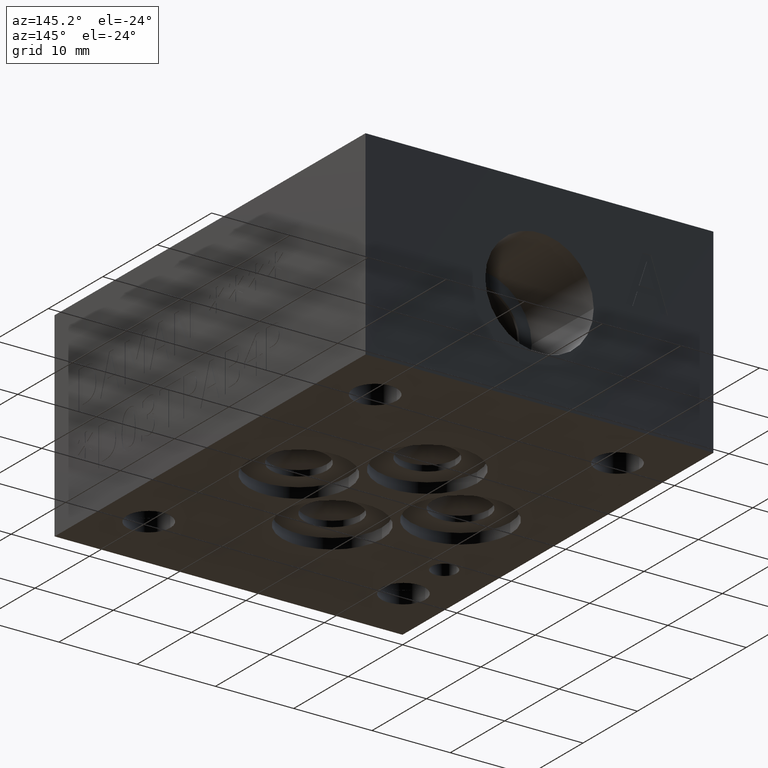
[diagram: clean part render]
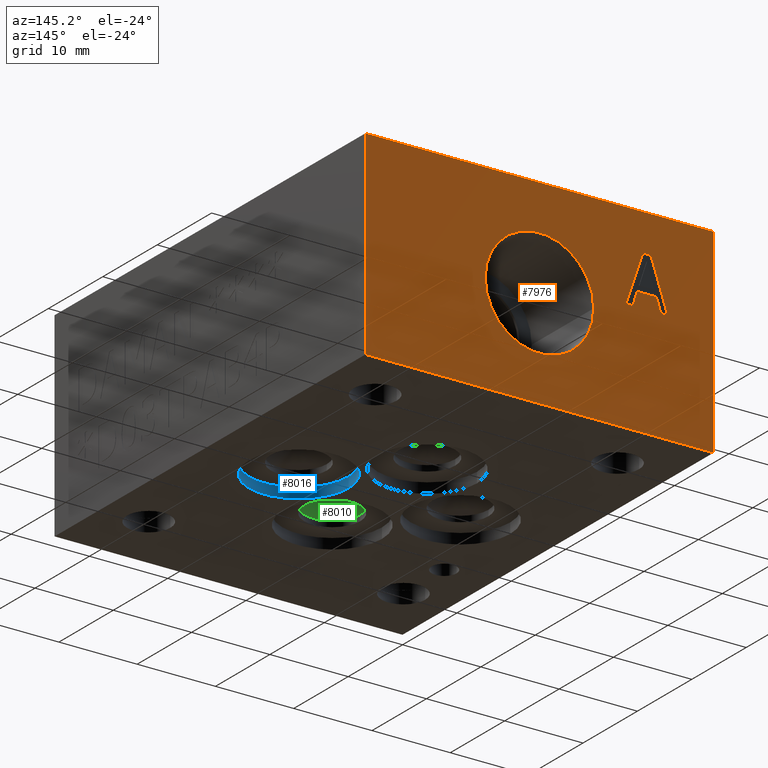
[diagram: same view with three faces highlighted in distinct colors, each labeled with its STEP entity id]
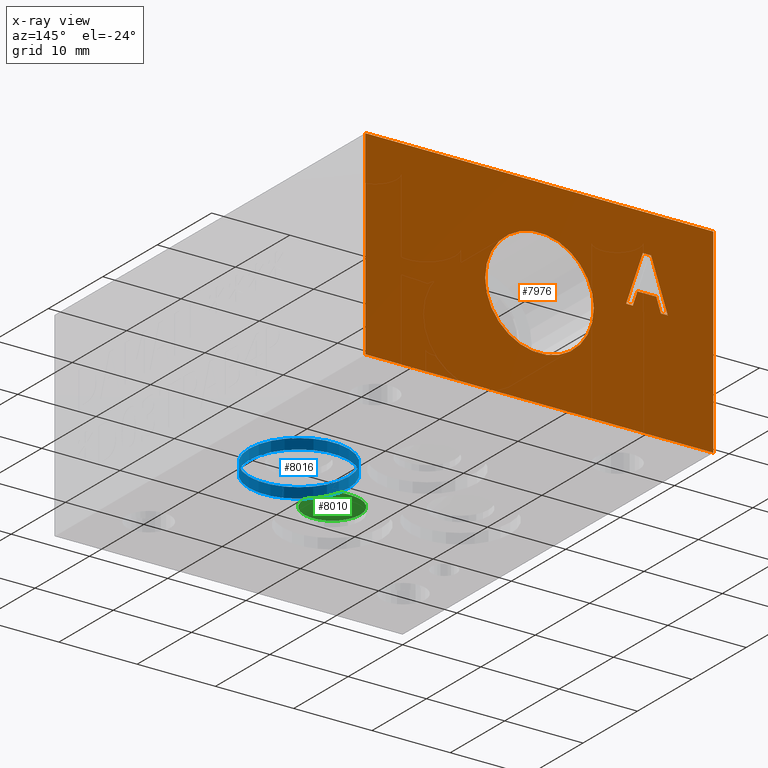
[diagram: x-ray of the same camera — body ghosted, the three highlighted faces saturated]
A machine part, auxiliary view with three faces highlighted in distinct colors.
The next image is the same camera in x-ray (body ghosted, the three faces saturated) — at least one of them is partly hidden behind the body in this view.
Their STEP definitions:

[orange] entity #7976 — the highlighted planar face has unit normal (0, 1, 0).
#54=CIRCLE('',#8330,6.9342);
#138=FACE_BOUND('',#1228,.T.);
#139=FACE_BOUND('',#1229,.T.);
#424=PLANE('',#8329);
#783=FACE_OUTER_BOUND('',#1227,.T.);
#1227=EDGE_LOOP('',(#6834,#6835,#6836,#6837));
#1228=EDGE_LOOP('',(#6838));
#1229=EDGE_LOOP('',(#6839,#6840,#6841,#6842,#6843,#6844,#6845,#6846));
#1680=LINE('',#11921,#2528);
#2069=LINE('',#12855,#2917);
#2073=LINE('',#12863,#2921);
#2076=LINE('',#12869,#2924);
#2079=LINE('',#12875,#2927);
#2082=LINE('',#12881,#2930);
#2085=LINE('',#12887,#2933);
#2088=LINE('',#12893,#2936);
#2091=LINE('',#12898,#2939);
#2093=LINE('',#12903,#2941);
#2094=LINE('',#12905,#2942);
#2095=LINE('',#12906,#2943);
#2528=VECTOR('',#8997,10.);
#2917=VECTOR('',#9678,10.);
#2921=VECTOR('',#9684,10.);
#2924=VECTOR('',#9689,10.);
#2927=VECTOR('',#9694,10.);
#2930=VECTOR('',#9699,10.);
#2933=VECTOR('',#9704,10.);
#2936=VECTOR('',#9709,10.);
#2939=VECTOR('',#9714,10.);
#2941=VECTOR('',#9720,10.);
#2942=VECTOR('',#9721,10.);
#2943=VECTOR('',#9722,10.);
#3539=VERTEX_POINT('',#11918);
#3540=VERTEX_POINT('',#11920);
#3810=VERTEX_POINT('',#12853);
#3811=VERTEX_POINT('',#12854);
#3814=VERTEX_POINT('',#12862);
#3816=VERTEX_POINT('',#12868);
#3818=VERTEX_POINT('',#12874);
#3820=VERTEX_POINT('',#12880);
#3822=VERTEX_POINT('',#12886);
#3824=VERTEX_POINT('',#12892);
#3826=VERTEX_POINT('',#12902);
#3827=VERTEX_POINT('',#12904);
#3828=VERTEX_POINT('',#12907);
#4427=EDGE_CURVE('',#3539,#3540,#1680,.T.);
#4832=EDGE_CURVE('',#3810,#3811,#2069,.T.);
#4836=EDGE_CURVE('',#3814,#3810,#2073,.T.);
#4839=EDGE_CURVE('',#3816,#3814,#2076,.T.);
#4842=EDGE_CURVE('',#3818,#3816,#2079,.T.);
#4845=EDGE_CURVE('',#3820,#3818,#2082,.T.);
#4848=EDGE_CURVE('',#3822,#3820,#2085,.T.);
#4851=EDGE_CURVE('',#3824,#3822,#2088,.T.);
#4854=EDGE_CURVE('',#3811,#3824,#2091,.T.);
#4856=EDGE_CURVE('',#3539,#3826,#2093,.T.);
#4857=EDGE_CURVE('',#3826,#3827,#2094,.T.);
#4858=EDGE_CURVE('',#3540,#3827,#2095,.T.);
#4859=EDGE_CURVE('',#3828,#3828,#54,.T.);
#6834=ORIENTED_EDGE('',*,*,#4856,.T.);
#6835=ORIENTED_EDGE('',*,*,#4857,.T.);
#6836=ORIENTED_EDGE('',*,*,#4858,.F.);
#6837=ORIENTED_EDGE('',*,*,#4427,.F.);
#6838=ORIENTED_EDGE('',*,*,#4859,.T.);
#6839=ORIENTED_EDGE('',*,*,#4832,.T.);
#6840=ORIENTED_EDGE('',*,*,#4854,.T.);
#6841=ORIENTED_EDGE('',*,*,#4851,.T.);
#6842=ORIENTED_EDGE('',*,*,#4848,.T.);
#6843=ORIENTED_EDGE('',*,*,#4845,.T.);
#6844=ORIENTED_EDGE('',*,*,#4842,.T.);
#6845=ORIENTED_EDGE('',*,*,#4839,.T.);
#6846=ORIENTED_EDGE('',*,*,#4836,.T.);
#7976=ADVANCED_FACE('',(#783,#138,#139),#424,.T.);
#8329=AXIS2_PLACEMENT_3D('',#12901,#9718,#9719);
#8330=AXIS2_PLACEMENT_3D('',#12908,#9723,#9724);
#8997=DIRECTION('',(0.,0.,1.));
#9678=DIRECTION('',(1.,0.,2.59940277575753E-15));
#9684=DIRECTION('',(0.308774363938385,0.,-0.951135317488761));
#9689=DIRECTION('',(1.,0.,3.66455083461359E-15));
#9694=DIRECTION('',(0.308774363938377,0.,0.951135317488763));
#9699=DIRECTION('',(1.,0.,2.49422462876157E-15));
#9704=DIRECTION('',(-0.319451166674565,0.,-0.947602739606772));
#9709=DIRECTION('',(-1.,0.,-4.27228575025496E-15));
#9714=DIRECTION('',(-0.319451166674571,0.,0.94760273960677));
#9718=DIRECTION('center_axis',(0.,1.,0.));
#9719=DIRECTION('ref_axis',(-1.,0.,0.));
#9720=DIRECTION('',(-1.,0.,0.));
#9721=DIRECTION('',(0.,0.,1.));
#9722=DIRECTION('',(-1.,0.,0.));
#9723=DIRECTION('center_axis',(0.,-1.,0.));
#9724=DIRECTION('ref_axis',(1.,0.,0.));
#11918=CARTESIAN_POINT('',(44.45,57.15,0.));
#11920=CARTESIAN_POINT('',(44.45,57.15,25.4));
#11921=CARTESIAN_POINT('',(44.45,57.15,0.));
#12853=CARTESIAN_POINT('',(10.29945301059,57.15,14.2875));
#12854=CARTESIAN_POINT('',(11.1536669361727,57.15,14.2875));
#12855=CARTESIAN_POINT('',(27.374726505295,57.15,14.2875));
#12862=CARTESIAN_POINT('',(9.72311590417277,57.15,16.0628241224459));
#12863=CARTESIAN_POINT('',(13.7372892968009,57.15,3.69773643979687));
#12868=CARTESIAN_POINT('',(7.2994125370075,57.15,16.0628241224459));
#12869=CARTESIAN_POINT('',(25.8747062685037,57.15,16.062824122446));
#12874=CARTESIAN_POINT('',(6.72307543059029,57.15,14.2875));
#12875=CARTESIAN_POINT('',(6.42352744359741,57.15,13.364785218638));
#12880=CARTESIAN_POINT('',(5.83284043585655,57.15,14.2875));
#12881=CARTESIAN_POINT('',(25.1414202179283,57.15,14.2875));
#12886=CARTESIAN_POINT('',(7.97352111683477,57.15,20.6374999046326));
#12887=CARTESIAN_POINT('',(6.71109838912714,57.15,16.892717101769));
#12892=CARTESIAN_POINT('',(9.0129862551944,57.15,20.6374999046326));
#12893=CARTESIAN_POINT('',(26.7314931275972,57.15,20.6374999046326));
#12898=CARTESIAN_POINT('',(15.0151010499464,57.15,2.83314976827694));
#12901=CARTESIAN_POINT('Origin',(44.45,57.15,0.));
#12902=CARTESIAN_POINT('',(0.,57.15,0.));
#12903=CARTESIAN_POINT('',(44.45,57.15,0.));
#12904=CARTESIAN_POINT('',(0.,57.15,25.4));
#12905=CARTESIAN_POINT('',(0.,57.15,0.));
#12906=CARTESIAN_POINT('',(44.45,57.15,25.4));
#12907=CARTESIAN_POINT('',(15.2908,57.15,12.7));
#12908=CARTESIAN_POINT('Origin',(22.225,57.15,12.7));

[blue] entity #8016 — the highlighted cylindrical surface (bore or boss wall) has radius 6.35 mm, axis along (0, 0, -1).
#20=CYLINDRICAL_SURFACE('',#8369,6.35);
#68=CIRCLE('',#8370,6.35);
#69=CIRCLE('',#8371,6.35);
#823=FACE_OUTER_BOUND('',#1275,.T.);
#1275=EDGE_LOOP('',(#7029,#7030,#7031,#7032));
#2153=LINE('',#13299,#3001);
#3001=VECTOR('',#9862,6.35);
#3896=VERTEX_POINT('',#13296);
#3897=VERTEX_POINT('',#13298);
#4958=EDGE_CURVE('',#3896,#3896,#68,.T.);
#4959=EDGE_CURVE('',#3896,#3897,#2153,.T.);
#4960=EDGE_CURVE('',#3897,#3897,#69,.T.);
#7029=ORIENTED_EDGE('',*,*,#4958,.F.);
#7030=ORIENTED_EDGE('',*,*,#4959,.T.);
#7031=ORIENTED_EDGE('',*,*,#4960,.F.);
#7032=ORIENTED_EDGE('',*,*,#4959,.F.);
#8016=ADVANCED_FACE('',(#823),#20,.F.);
#8369=AXIS2_PLACEMENT_3D('',#13295,#9858,#9859);
#8370=AXIS2_PLACEMENT_3D('',#13297,#9860,#9861);
#8371=AXIS2_PLACEMENT_3D('',#13300,#9863,#9864);
#9858=DIRECTION('center_axis',(0.,0.,-1.));
#9859=DIRECTION('ref_axis',(1.,0.,0.));
#9860=DIRECTION('center_axis',(0.,0.,1.));
#9861=DIRECTION('ref_axis',(1.,0.,0.));
#9862=DIRECTION('',(0.,0.,1.));
#9863=DIRECTION('center_axis',(0.,0.,-1.));
#9864=DIRECTION('ref_axis',(1.,0.,0.));
#13295=CARTESIAN_POINT('Origin',(32.5628,27.8003,0.6604));
#13296=CARTESIAN_POINT('',(26.2128,27.8003,0.));
#13297=CARTESIAN_POINT('Origin',(32.5628,27.8003,0.));
#13298=CARTESIAN_POINT('',(26.2128,27.8003,1.3208));
#13299=CARTESIAN_POINT('',(26.2128,27.8003,0.6604));
#13300=CARTESIAN_POINT('Origin',(32.5628,27.8003,1.3208));

[green] entity #8010 — the highlighted conical surface has half-angle 60 deg.
#42=CONICAL_SURFACE('',#8357,1.78435,1.0471975511966);
#62=CIRCLE('',#8358,3.5687);
#817=FACE_OUTER_BOUND('',#1267,.T.);
#1267=EDGE_LOOP('',(#7010,#7011,#7012));
#2149=LINE('',#13276,#2997);
#2997=VECTOR('',#9834,1.78435);
#3889=VERTEX_POINT('',#13273);
#3890=VERTEX_POINT('',#13275);
#4948=EDGE_CURVE('',#3889,#3889,#62,.T.);
#4949=EDGE_CURVE('',#3889,#3890,#2149,.T.);
#7010=ORIENTED_EDGE('',*,*,#4948,.T.);
#7011=ORIENTED_EDGE('',*,*,#4949,.T.);
#7012=ORIENTED_EDGE('',*,*,#4949,.F.);
#8010=ADVANCED_FACE('',(#817),#42,.F.);
#8357=AXIS2_PLACEMENT_3D('',#13272,#9830,#9831);
#8358=AXIS2_PLACEMENT_3D('',#13274,#9832,#9833);
#9830=DIRECTION('center_axis',(0.,0.,-1.));
#9831=DIRECTION('ref_axis',(1.,0.,0.));
#9832=DIRECTION('center_axis',(0.,0.,-1.));
#9833=DIRECTION('ref_axis',(1.,0.,0.));
#9834=DIRECTION('',(0.866025403784439,-1.06057523872491E-16,0.5));
#13272=CARTESIAN_POINT('Origin',(22.225,19.0627,3.09058495282851));
#13273=CARTESIAN_POINT('',(18.6563,19.0627,2.06039));
#13274=CARTESIAN_POINT('Origin',(22.225,19.0627,2.06039));
#13275=CARTESIAN_POINT('',(22.225,19.0627,4.12077990565702));
#13276=CARTESIAN_POINT('',(20.44065,19.0627,3.09058495282851));